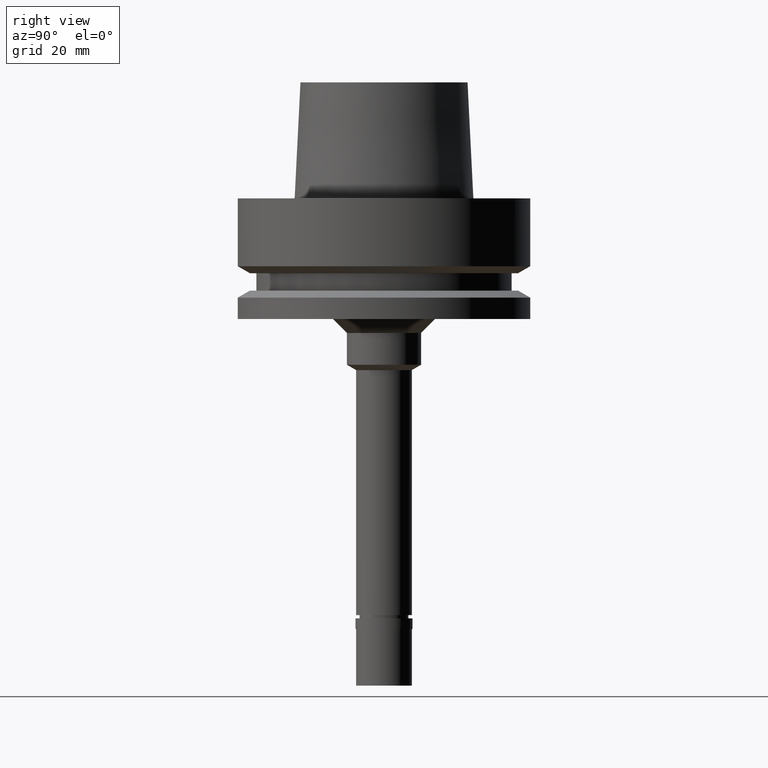
[diagram: clean part render]
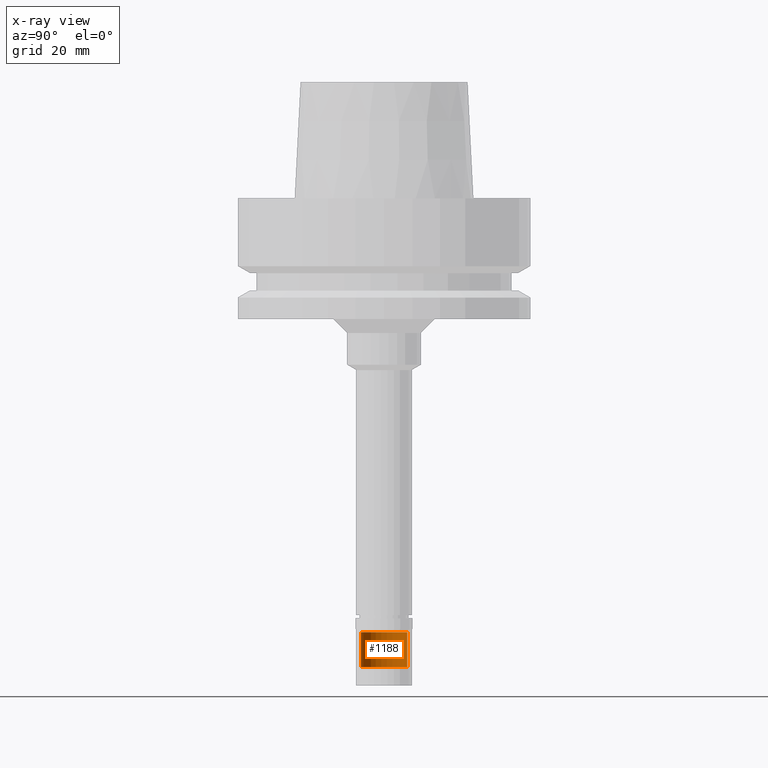
[diagram: x-ray — body ghosted, one internal face saturated and labeled with its STEP entity id]
A machine part, right view, then the same camera in x-ray: the body is ghosted and one INTERNAL B-rep face — a face not visible from any outside direction — is saturated and labeled: STEP entity #1188.
In plain terms, the highlighted cylindrical surface (edge-blend (fillet) strip) has radius 5 mm, axis along (0, 0, 1).
Its self-contained STEP definition (entity closure, byte-faithful):
#20 = EDGE_CURVE ( 'NONE', #1670, #2288, #977, .T. ) ;
#32 = CARTESIAN_POINT ( 'NONE',  ( 0.0000000000000000000, -5.000000000000000000, -93.50000000000000000 ) ) ;
#72 = ORIENTED_EDGE ( 'NONE', *, *, #1607, .T. ) ;
#140 = ORIENTED_EDGE ( 'NONE', *, *, #20, .T. ) ;
#183 = DIRECTION ( 'NONE',  ( 0.0000000000000000000, 0.0000000000000000000, 1.000000000000000000 ) ) ;
#290 = DIRECTION ( 'NONE',  ( 0.0000000000000000000, 0.0000000000000000000, -1.000000000000000000 ) ) ;
#326 = CARTESIAN_POINT ( 'NONE',  ( 0.0000000000000000000, 5.000000000000000000, -93.50000000000000000 ) ) ;
#353 = ORIENTED_EDGE ( 'NONE', *, *, #1754, .T. ) ;
#382 = DIRECTION ( 'NONE',  ( 0.0000000000000000000, 0.0000000000000000000, -1.000000000000000000 ) ) ;
#510 = DIRECTION ( 'NONE',  ( 0.0000000000000000000, 0.0000000000000000000, 1.000000000000000000 ) ) ;
#567 = CARTESIAN_POINT ( 'NONE',  ( 0.0000000000000000000, 5.000000000000000000, -93.50000000000000000 ) ) ;
#600 = VERTEX_POINT ( 'NONE', #32 ) ;
#666 = AXIS2_PLACEMENT_3D ( 'NONE', #2545, #183, #1508 ) ;
#671 = CIRCLE ( 'NONE', #1481, 5.000000000000000000 ) ;
#678 = VECTOR ( 'NONE', #382, 1000.000000000000000 ) ;
#821 = LINE ( 'NONE', #567, #2473 ) ;
#977 = CIRCLE ( 'NONE', #666, 5.000000000000000000 ) ;
#1188 = ADVANCED_FACE ( 'NONE', ( #2476 ), #2434, .T. ) ;
#1350 = AXIS2_PLACEMENT_3D ( 'NONE', #2013, #510, #1788 ) ;
#1422 = CARTESIAN_POINT ( 'NONE',  ( 0.0000000000000000000, 0.0000000000000000000, -93.50000000000000000 ) ) ;
#1436 = DIRECTION ( 'NONE',  ( 0.0000000000000000000, 0.0000000000000000000, -1.000000000000000000 ) ) ;
#1481 = AXIS2_PLACEMENT_3D ( 'NONE', #1422, #290, #1818 ) ;
#1508 = DIRECTION ( 'NONE',  ( 0.0000000000000000000, 1.000000000000000000, 0.0000000000000000000 ) ) ;
#1550 = VERTEX_POINT ( 'NONE', #326 ) ;
#1607 = EDGE_CURVE ( 'NONE', #600, #1550, #671, .T. ) ;
#1663 = CARTESIAN_POINT ( 'NONE',  ( 0.0000000000000000000, -5.000000000000000000, -101.0000000000000000 ) ) ;
#1670 = VERTEX_POINT ( 'NONE', #2034 ) ;
#1754 = EDGE_CURVE ( 'NONE', #1550, #1670, #821, .T. ) ;
#1788 = DIRECTION ( 'NONE',  ( 0.0000000000000000000, 1.000000000000000000, 0.0000000000000000000 ) ) ;
#1818 = DIRECTION ( 'NONE',  ( 0.0000000000000000000, -1.000000000000000000, 0.0000000000000000000 ) ) ;
#1820 = EDGE_LOOP ( 'NONE', ( #140, #2184, #72, #353 ) ) ;
#1838 = LINE ( 'NONE', #2710, #678 ) ;
#2013 = CARTESIAN_POINT ( 'NONE',  ( 0.0000000000000000000, 0.0000000000000000000, -107.3000000000000114 ) ) ;
#2034 = CARTESIAN_POINT ( 'NONE',  ( 0.0000000000000000000, 5.000000000000000000, -101.0000000000000000 ) ) ;
#2184 = ORIENTED_EDGE ( 'NONE', *, *, #2276, .F. ) ;
#2276 = EDGE_CURVE ( 'NONE', #600, #2288, #1838, .T. ) ;
#2288 = VERTEX_POINT ( 'NONE', #1663 ) ;
#2434 = CYLINDRICAL_SURFACE ( 'NONE', #1350, 5.000000000000000000 ) ;
#2473 = VECTOR ( 'NONE', #1436, 1000.000000000000000 ) ;
#2476 = FACE_OUTER_BOUND ( 'NONE', #1820, .T. ) ;
#2545 = CARTESIAN_POINT ( 'NONE',  ( 0.0000000000000000000, 0.0000000000000000000, -101.0000000000000000 ) ) ;
#2710 = CARTESIAN_POINT ( 'NONE',  ( 0.0000000000000000000, -5.000000000000000000, -93.50000000000000000 ) ) ;